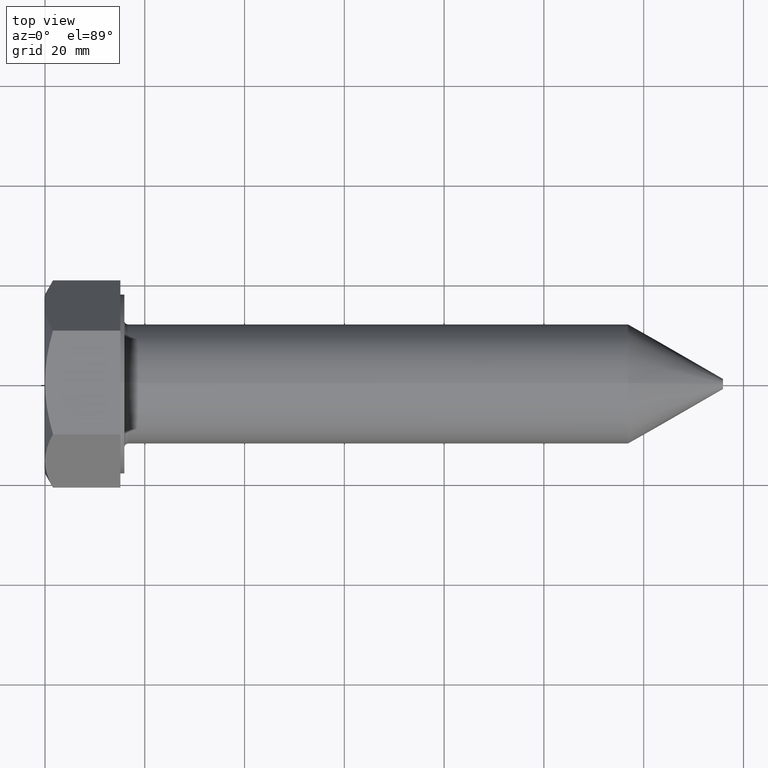
[diagram: clean part render]
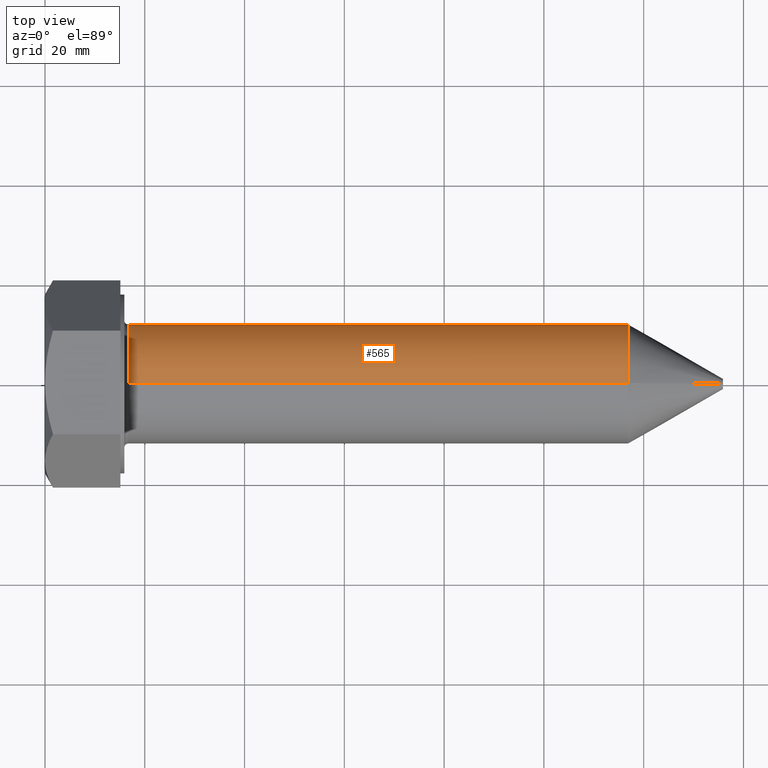
[diagram: same view with one face highlighted and labeled with its STEP entity id]
A machine part, top view. The second image highlights one B-rep face of the part: STEP entity #565.
In plain terms, the highlighted cylindrical surface (partial cylindrical patch) has radius 12 mm, axis along (-1, -0, -0).
Its self-contained STEP definition (entity closure, byte-faithful):
#23 = VERTEX_POINT ( 'NONE', #790 ) ;
#24 = DIRECTION ( 'NONE',  ( -1.000000000000000000, -0.000000000000000000, -0.000000000000000000 ) ) ;
#58 = CARTESIAN_POINT ( 'NONE',  ( 0.000000000000000000, 0.000000000000000000, 0.000000000000000000 ) ) ;
#60 = DIRECTION ( 'NONE',  ( 0.000000000000000000, 0.000000000000000000, -1.000000000000000000 ) ) ;
#88 = AXIS2_PLACEMENT_3D ( 'NONE', #739, #674, #60 ) ;
#90 = DIRECTION ( 'NONE',  ( -1.000000000000000000, -0.000000000000000000, -0.000000000000000000 ) ) ;
#129 = VERTEX_POINT ( 'NONE', #178 ) ;
#178 = CARTESIAN_POINT ( 'NONE',  ( 16.69999999999999929, 1.469576158976823947E-15, -12.00000000000000000 ) ) ;
#247 = EDGE_CURVE ( 'NONE', #129, #23, #877, .T. ) ;
#292 = VECTOR ( 'NONE', #24, 1000.000000000000000 ) ;
#314 = LINE ( 'NONE', #642, #292 ) ;
#337 = CARTESIAN_POINT ( 'NONE',  ( 116.8474411167420755, 1.469576158976823947E-15, -12.00000000000000000 ) ) ;
#355 = DIRECTION ( 'NONE',  ( -1.000000000000000000, -0.000000000000000000, -0.000000000000000000 ) ) ;
#363 = CARTESIAN_POINT ( 'NONE',  ( 116.8474411167420755, 0.000000000000000000, 12.00000000000000000 ) ) ;
#393 = ORIENTED_EDGE ( 'NONE', *, *, #247, .T. ) ;
#416 = ORIENTED_EDGE ( 'NONE', *, *, #885, .F. ) ;
#417 = FACE_OUTER_BOUND ( 'NONE', #870, .T. ) ;
#462 = AXIS2_PLACEMENT_3D ( 'NONE', #58, #681, #872 ) ;
#463 = ORIENTED_EDGE ( 'NONE', *, *, #778, .T. ) ;
#467 = EDGE_CURVE ( 'NONE', #572, #129, #784, .T. ) ;
#489 = VERTEX_POINT ( 'NONE', #363 ) ;
#493 = CIRCLE ( 'NONE', #879, 12.00000000000000000 ) ;
#565 = ADVANCED_FACE ( 'NONE', ( #417 ), #673, .T. ) ;
#572 = VERTEX_POINT ( 'NONE', #337 ) ;
#621 = VECTOR ( 'NONE', #90, 1000.000000000000000 ) ;
#626 = DIRECTION ( 'NONE',  ( 0.000000000000000000, 0.000000000000000000, 1.000000000000000000 ) ) ;
#642 = CARTESIAN_POINT ( 'NONE',  ( 0.000000000000000000, 0.000000000000000000, 12.00000000000000000 ) ) ;
#643 = CARTESIAN_POINT ( 'NONE',  ( 0.000000000000000000, 1.469576158976823947E-15, -12.00000000000000000 ) ) ;
#652 = ORIENTED_EDGE ( 'NONE', *, *, #467, .T. ) ;
#673 = CYLINDRICAL_SURFACE ( 'NONE', #462, 12.00000000000000000 ) ;
#674 = DIRECTION ( 'NONE',  ( 1.000000000000000000, 0.000000000000000000, -0.000000000000000000 ) ) ;
#681 = DIRECTION ( 'NONE',  ( -1.000000000000000000, -0.000000000000000000, -0.000000000000000000 ) ) ;
#739 = CARTESIAN_POINT ( 'NONE',  ( 16.69999999999999929, 0.000000000000000000, 0.000000000000000000 ) ) ;
#778 = EDGE_CURVE ( 'NONE', #489, #572, #493, .T. ) ;
#784 = LINE ( 'NONE', #643, #621 ) ;
#790 = CARTESIAN_POINT ( 'NONE',  ( 16.69999999999999929, 0.000000000000000000, 12.00000000000000000 ) ) ;
#844 = CARTESIAN_POINT ( 'NONE',  ( 116.8474411167420755, 0.000000000000000000, 0.000000000000000000 ) ) ;
#870 = EDGE_LOOP ( 'NONE', ( #463, #652, #393, #416 ) ) ;
#872 = DIRECTION ( 'NONE',  ( 0.000000000000000000, 0.000000000000000000, 1.000000000000000000 ) ) ;
#877 = CIRCLE ( 'NONE', #88, 12.00000000000000000 ) ;
#879 = AXIS2_PLACEMENT_3D ( 'NONE', #844, #355, #626 ) ;
#885 = EDGE_CURVE ( 'NONE', #489, #23, #314, .T. ) ;